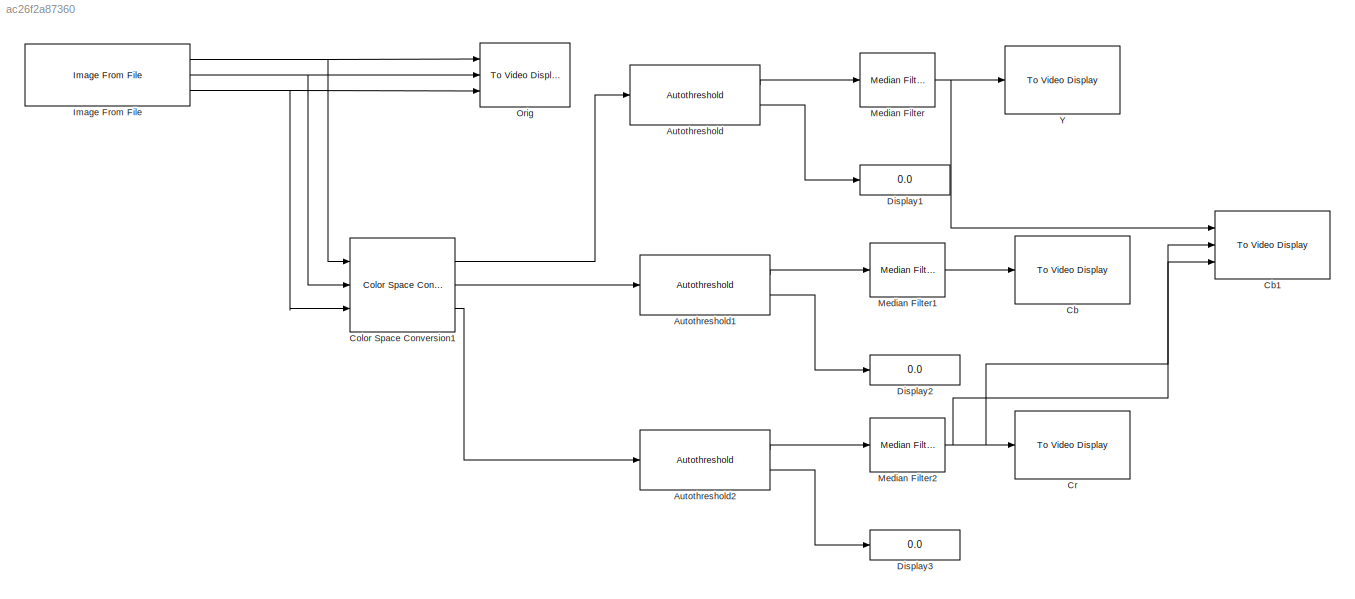
MODEL slx_ac26f2a87360
KIND model
CONFIG AbsTol = auto
CONFIG FixedStep = auto
CONFIG MaxStep = auto
CONFIG MinStep = auto
CONFIG RelTol = 1e-3
CONFIG SampleTimeConstraint = Unconstrained
CONFIG Solver = VariableStepAuto
CONFIG SolverMode = Auto
CONFIG SolverName = VariableStepAuto
CONFIG StartTime = 0.0
CONFIG StopTime = inf
BLOCK [Reference] Autothreshold  REF=visionconversions/Autothreshold
  Ports = [1, 2]
  SourceBlock = visionconversions/Autothreshold
  SourceType = Autothreshold
BLOCK [Reference] Autothreshold1  REF=visionconversions/Autothreshold
  Ports = [1, 2]
  SourceBlock = visionconversions/Autothreshold
  SourceType = Autothreshold
BLOCK [Reference] Autothreshold2  REF=visionconversions/Autothreshold
  Ports = [1, 2]
  SourceBlock = visionconversions/Autothreshold
  SourceType = Autothreshold
BLOCK [Reference] Cb  REF=visionsinks/To Video Display
  Ports = [1]
  SourceBlock = visionsinks/To Video Display
  SourceType = To Video Display
BLOCK [Reference] Cb1  REF=visionsinks/To Video Display
  Ports = [3]
  SourceBlock = visionsinks/To Video Display
  SourceType = To Video Display
BLOCK [Reference] Color Space Conversion1  REF=visionconversions/Color Space
 Conversion
  Ports = [3, 3]
  SourceBlock = visionconversions/Color Space\n Conversion
  SourceType = Color Space Conversion
BLOCK [Reference] Cr  REF=visionsinks/To Video Display
  Ports = [1]
  SourceBlock = visionsinks/To Video Display
  SourceType = To Video Display
BLOCK [Display] Display1
  Decimation = 1
  Ports = [1]
BLOCK [Display] Display2
  Decimation = 1
  Ports = [1]
BLOCK [Display] Display3
  Decimation = 1
  Ports = [1]
BLOCK [Reference] Image From File  REF=visionsources/Image From File
  Ports = [0, 3]
  SourceBlock = visionsources/Image From File
  SourceType = Image From File
  Tag = vipblks_nd
BLOCK [Reference] Median Filter  REF=visionanalysis/Median Filter
  Ports = [1, 1]
  SourceBlock = visionanalysis/Median Filter
  SourceType = Median Filter
BLOCK [Reference] Median Filter1  REF=visionanalysis/Median Filter
  Ports = [1, 1]
  SourceBlock = visionanalysis/Median Filter
  SourceType = Median Filter
BLOCK [Reference] Median Filter2  REF=visionanalysis/Median Filter
  Ports = [1, 1]
  SourceBlock = visionanalysis/Median Filter
  SourceType = Median Filter
BLOCK [Reference] Orig  REF=visionsinks/To Video Display
  Ports = [3]
  SourceBlock = visionsinks/To Video Display
  SourceType = To Video Display
BLOCK [Reference] Y  REF=visionsinks/To Video Display
  Ports = [1]
  SourceBlock = visionsinks/To Video Display
  SourceType = To Video Display
LINE Autothreshold1:1 -> Median Filter1:1
LINE Autothreshold1:2 -> Display2:1
LINE Autothreshold2:1 -> Median Filter2:1
LINE Autothreshold2:2 -> Display3:1
LINE Autothreshold:1 -> Median Filter:1
LINE Autothreshold:2 -> Display1:1
LINE Color Space Conversion1:1 -> Autothreshold:1
LINE Color Space Conversion1:2 -> Autothreshold1:1
LINE Color Space Conversion1:3 -> Autothreshold2:1
NET Image From File:1 -> Color Space Conversion1:1, Orig:1
NET Image From File:2 -> Color Space Conversion1:2, Orig:2
NET Image From File:3 -> Color Space Conversion1:3, Orig:3
LINE Median Filter1:1 -> Cb:1
NET Median Filter2:1 -> Cb1:2, Cb1:3, Cr:1
NET Median Filter:1 -> Cb1:1, Y:1
note: NET lines group one-source signal fan-out (src -> all destinations, sorted); 1:1 wires keep LINE
